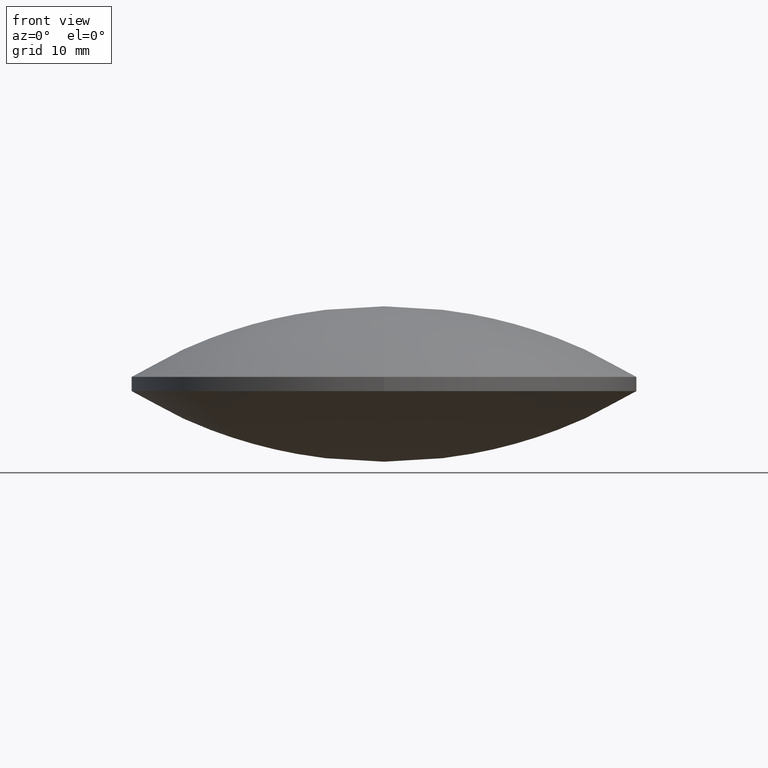
[diagram: clean part render]
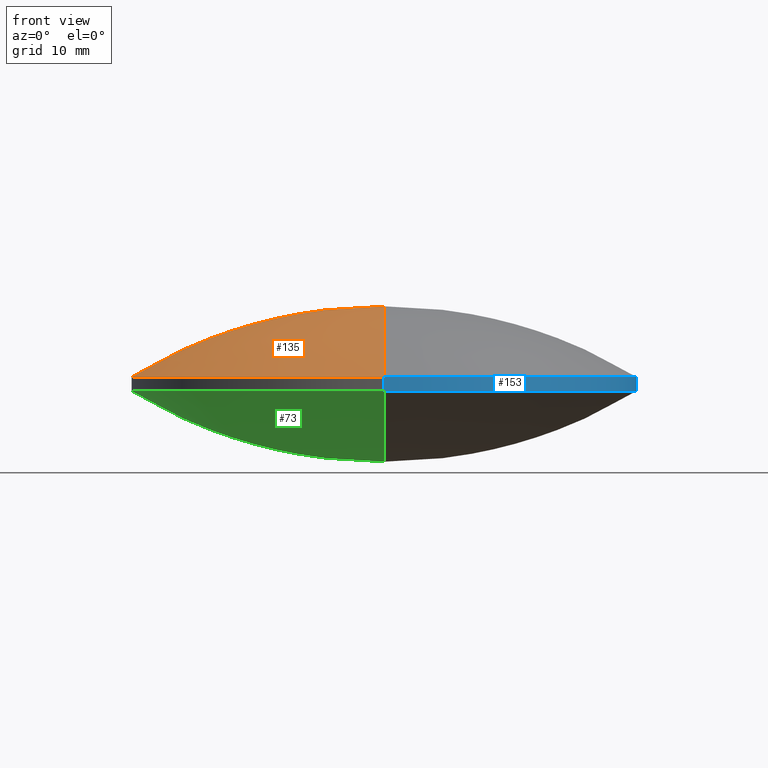
[diagram: same view with three faces highlighted in distinct colors, each labeled with its STEP entity id]
A machine part, front view with three faces highlighted in distinct colors.
Their STEP definitions:

[orange] entity #135 — the highlighted face is a freeform B-spline surface patch.
#4 = CARTESIAN_POINT ( 'NONE',  ( -21.81581761930886300, 25.67355596179357500, 2.202616643730818800 ) ) ;
#5 = CARTESIAN_POINT ( 'NONE',  ( -9.589711228101698700, -9.493655584627672900, 18.28236261593199400 ) ) ;
#16 =( BOUNDED_SURFACE ( )  B_SPLINE_SURFACE ( 3, 3, ( 
 ( #104, #144, #68, #36 ),
 ( #88, #5, #113, #53 ),
 ( #213, #111, #208, #148 ),
 ( #35, #85, #245, #4 ) ),
 .UNSPECIFIED., .F., .F., .T. ) 
 B_SPLINE_SURFACE_WITH_KNOTS ( ( 4, 4 ),
 ( 4, 4 ),
 ( 0.0000000000000000000, 1.000000000000000000 ),
 ( 0.0000000000000000000, 1.000000000000000000 ),
 .UNSPECIFIED. ) 
 GEOMETRIC_REPRESENTATION_ITEM ( )  RATIONAL_B_SPLINE_SURFACE ( (
 ( 1.000000000000000000, 0.9750407155908767900, 0.9750407155908767900, 1.000000000000000000),
 ( 0.9014285288715965200, 0.8789295178449928500, 0.8789295178449928500, 0.9014285288715965200),
 ( 0.9014285288715965200, 0.8789295178449928500, 0.8789295178449928500, 0.9014285288715965200),
 ( 1.000000000000000000, 0.9750407155908767900, 0.9750407155908767900, 1.000000000000000000) ) ) 
 REPRESENTATION_ITEM ( '' )  SURFACE ( )  );
#35 = CARTESIAN_POINT ( 'NONE',  ( 8.960409784571542900E-015, 25.67355596179357500, 8.346125439660790200 ) ) ;
#36 = CARTESIAN_POINT ( 'NONE',  ( -21.81581761930885600, -25.67355596179360000, 2.202616643730821400 ) ) ;
#38 = CARTESIAN_POINT ( 'NONE',  ( -3.552713678800500100E-015, -7.105427357601000300E-015, -33.46000000000000100 ) ) ;
#39 = ORIENTED_EDGE ( 'NONE', *, *, #49, .T. ) ;
#49 = EDGE_CURVE ( 'NONE', #107, #131, #146, .T. ) ;
#53 = CARTESIAN_POINT ( 'NONE',  ( -27.00087449267519400, -9.493655584627672900, 10.67870031740171100 ) ) ;
#68 = CARTESIAN_POINT ( 'NONE',  ( -15.20625868226547600, -25.67355596179360000, 6.245868258021976000 ) ) ;
#81 = ORIENTED_EDGE ( 'NONE', *, *, #172, .F. ) ;
#85 = CARTESIAN_POINT ( 'NONE',  ( -7.748170942791460900, 25.67355596179357100, 8.346125439660792000 ) ) ;
#87 = DIRECTION ( 'NONE',  ( 1.797079892071900000E-031, 9.344115438189380100E-016, -1.000000000000000000 ) ) ;
#88 = CARTESIAN_POINT ( 'NONE',  ( 1.193445632058646300E-014, -9.493655584627671100, 18.28236261593198400 ) ) ;
#95 = DIRECTION ( 'NONE',  ( 0.0000000000000000000, -1.000000000000000000, 2.828737832819905300E-016 ) ) ;
#97 = CARTESIAN_POINT ( 'NONE',  ( 9.992007221626410800E-016, -25.39999999999999500, 8.512891251377935100 ) ) ;
#104 = CARTESIAN_POINT ( 'NONE',  ( 8.960409784571536500E-015, -25.67355596179360000, 8.346125439660790200 ) ) ;
#107 = VERTEX_POINT ( 'NONE', #97 ) ;
#111 = CARTESIAN_POINT ( 'NONE',  ( -9.589711228101698700, 9.493655584627646200, 18.28236261593198700 ) ) ;
#113 = CARTESIAN_POINT ( 'NONE',  ( -18.82039396128808700, -9.493655584627672900, 15.68292850104567500 ) ) ;
#119 = AXIS2_PLACEMENT_3D ( 'NONE', #38, #173, #95 ) ;
#121 = FACE_OUTER_BOUND ( 'NONE', #176, .T. ) ;
#131 = VERTEX_POINT ( 'NONE', #255 ) ;
#135 = ADVANCED_FACE ( 'NONE', ( #121 ), #16, .T. ) ;
#144 = CARTESIAN_POINT ( 'NONE',  ( -7.748170942791459100, -25.67355596179360000, 8.346125439660792000 ) ) ;
#146 = CIRCLE ( 'NONE', #119, 49.06000000000000900 ) ;
#148 = CARTESIAN_POINT ( 'NONE',  ( -27.00087449267519400, 9.493655584627648000, 10.67870031740170600 ) ) ;
#172 = EDGE_CURVE ( 'NONE', #107, #131, #209, .T. ) ;
#173 = DIRECTION ( 'NONE',  ( -1.000000000000000000, 8.864262300989019900E-032, 2.993131588200479900E-016 ) ) ;
#176 = EDGE_LOOP ( 'NONE', ( #81, #39 ) ) ;
#208 = CARTESIAN_POINT ( 'NONE',  ( -18.82039396128808700, 9.493655584627646200, 15.68292850104566900 ) ) ;
#209 = CIRCLE ( 'NONE', #232, 25.39999999999999900 ) ;
#212 = CARTESIAN_POINT ( 'NONE',  ( 9.992007221626410800E-016, 3.552713678800502500E-015, 8.512891251377960000 ) ) ;
#213 = CARTESIAN_POINT ( 'NONE',  ( 1.193445632058646500E-014, 9.493655584627649800, 18.28236261593198400 ) ) ;
#228 = DIRECTION ( 'NONE',  ( 0.0000000000000000000, -1.000000000000000000, -9.561467977824922300E-016 ) ) ;
#232 = AXIS2_PLACEMENT_3D ( 'NONE', #212, #87, #228 ) ;
#245 = CARTESIAN_POINT ( 'NONE',  ( -15.20625868226548000, 25.67355596179357100, 6.245868258021974200 ) ) ;
#255 = CARTESIAN_POINT ( 'NONE',  ( 4.109803591996917800E-015, 25.40000000000000200, 8.512891251377984900 ) ) ;

[blue] entity #153 — the highlighted cylindrical surface (partial cylindrical patch) has radius 25.4 mm, axis along (-0, -0, 1).
#13 = DIRECTION ( 'NONE',  ( 1.797079892071900000E-031, 9.344115438189380100E-016, -1.000000000000000000 ) ) ;
#15 = DIRECTION ( 'NONE',  ( -1.797079892071900000E-031, -9.344115438189380100E-016, 1.000000000000000000 ) ) ;
#20 = VECTOR ( 'NONE', #15, 1000.000000000000000 ) ;
#28 = DIRECTION ( 'NONE',  ( 1.797079892071900000E-031, 9.344115438189380100E-016, -1.000000000000000000 ) ) ;
#31 = VERTEX_POINT ( 'NONE', #117 ) ;
#32 = CARTESIAN_POINT ( 'NONE',  ( 9.992007221626410800E-016, 3.552713678800502500E-015, 8.512891251377960000 ) ) ;
#37 = EDGE_CURVE ( 'NONE', #140, #131, #106, .T. ) ;
#40 = EDGE_CURVE ( 'NONE', #140, #31, #76, .T. ) ;
#45 = ORIENTED_EDGE ( 'NONE', *, *, #37, .T. ) ;
#48 = CARTESIAN_POINT ( 'NONE',  ( 9.992007221626412800E-016, -25.39999999999999500, 7.087108748622016600 ) ) ;
#72 = EDGE_LOOP ( 'NONE', ( #93, #45, #250, #230 ) ) ;
#74 = CARTESIAN_POINT ( 'NONE',  ( 9.992007221626412800E-016, 4.884981308350691100E-015, 7.087108748622040500 ) ) ;
#75 = EDGE_CURVE ( 'NONE', #131, #107, #101, .T. ) ;
#76 = CIRCLE ( 'NONE', #90, 25.39999999999999900 ) ;
#89 = LINE ( 'NONE', #48, #220 ) ;
#90 = AXIS2_PLACEMENT_3D ( 'NONE', #74, #13, #169 ) ;
#93 = ORIENTED_EDGE ( 'NONE', *, *, #40, .F. ) ;
#97 = CARTESIAN_POINT ( 'NONE',  ( 9.992007221626410800E-016, -25.39999999999999500, 8.512891251377935100 ) ) ;
#101 = CIRCLE ( 'NONE', #137, 25.39999999999999900 ) ;
#106 = LINE ( 'NONE', #151, #20 ) ;
#107 = VERTEX_POINT ( 'NONE', #97 ) ;
#117 = CARTESIAN_POINT ( 'NONE',  ( 9.992007221626412800E-016, -25.39999999999999500, 7.087108748622016600 ) ) ;
#124 = CARTESIAN_POINT ( 'NONE',  ( 4.109803591996917800E-015, 25.40000000000000200, 7.087108748622063600 ) ) ;
#131 = VERTEX_POINT ( 'NONE', #255 ) ;
#137 = AXIS2_PLACEMENT_3D ( 'NONE', #32, #28, #160 ) ;
#140 = VERTEX_POINT ( 'NONE', #124 ) ;
#151 = CARTESIAN_POINT ( 'NONE',  ( 4.109803591996917800E-015, 25.40000000000000200, 7.087108748622063600 ) ) ;
#153 = ADVANCED_FACE ( 'NONE', ( #200 ), #159, .T. ) ;
#159 = CYLINDRICAL_SURFACE ( 'NONE', #236, 25.39999999999999900 ) ;
#160 = DIRECTION ( 'NONE',  ( 0.0000000000000000000, -1.000000000000000000, -9.561467977824922300E-016 ) ) ;
#169 = DIRECTION ( 'NONE',  ( 0.0000000000000000000, -1.000000000000000000, -9.219986978616888100E-016 ) ) ;
#186 = CARTESIAN_POINT ( 'NONE',  ( 9.992007221626412800E-016, 4.884981308350691100E-015, 7.087108748622040500 ) ) ;
#188 = DIRECTION ( 'NONE',  ( 0.0000000000000000000, -1.000000000000000000, -9.219986978616888100E-016 ) ) ;
#200 = FACE_OUTER_BOUND ( 'NONE', #72, .T. ) ;
#211 = DIRECTION ( 'NONE',  ( -1.797079892071900000E-031, -9.344115438189380100E-016, 1.000000000000000000 ) ) ;
#220 = VECTOR ( 'NONE', #240, 1000.000000000000000 ) ;
#226 = EDGE_CURVE ( 'NONE', #31, #107, #89, .T. ) ;
#230 = ORIENTED_EDGE ( 'NONE', *, *, #226, .F. ) ;
#236 = AXIS2_PLACEMENT_3D ( 'NONE', #186, #211, #188 ) ;
#240 = DIRECTION ( 'NONE',  ( -1.797079892071900000E-031, -9.344115438189380100E-016, 1.000000000000000000 ) ) ;
#250 = ORIENTED_EDGE ( 'NONE', *, *, #75, .T. ) ;
#255 = CARTESIAN_POINT ( 'NONE',  ( 4.109803591996917800E-015, 25.40000000000000200, 8.512891251377984900 ) ) ;

[green] entity #73 — the highlighted face is a freeform B-spline surface patch.
#7 = DIRECTION ( 'NONE',  ( 0.0000000000000000000, -1.000000000000000000, -5.657475665639810500E-016 ) ) ;
#10 = AXIS2_PLACEMENT_3D ( 'NONE', #141, #162, #7 ) ;
#11 = CIRCLE ( 'NONE', #10, 49.06000000000000900 ) ;
#27 = DIRECTION ( 'NONE',  ( 1.797079892071900000E-031, 9.344115438189380100E-016, -1.000000000000000000 ) ) ;
#31 = VERTEX_POINT ( 'NONE', #117 ) ;
#43 = CARTESIAN_POINT ( 'NONE',  ( -2.428612866367529600E-014, 9.493655584627690700, -2.682362615931977300 ) ) ;
#62 = CARTESIAN_POINT ( 'NONE',  ( -18.82039396128811500, -9.493655584627637400, -0.08292850104565496800 ) ) ;
#63 = CARTESIAN_POINT ( 'NONE',  ( -7.748170942791488400, -25.67355596179356400, 7.253874560339210300 ) ) ;
#66 = FACE_OUTER_BOUND ( 'NONE', #196, .T. ) ;
#73 = ADVANCED_FACE ( 'NONE', ( #66 ), #170, .T. ) ;
#78 = DIRECTION ( 'NONE',  ( 0.0000000000000000000, -1.000000000000000000, -9.219986978616888100E-016 ) ) ;
#82 = EDGE_CURVE ( 'NONE', #31, #140, #11, .T. ) ;
#83 = CARTESIAN_POINT ( 'NONE',  ( -7.748170942791488400, 25.67355596179361000, 7.253874560339238700 ) ) ;
#99 = CARTESIAN_POINT ( 'NONE',  ( -2.775557561562891000E-014, -9.493655584627633800, -2.682362615931980900 ) ) ;
#102 = CARTESIAN_POINT ( 'NONE',  ( -18.82039396128811500, 9.493655584627690700, -0.08292850104564975000 ) ) ;
#117 = CARTESIAN_POINT ( 'NONE',  ( 9.992007221626412800E-016, -25.39999999999999500, 7.087108748622016600 ) ) ;
#120 = CARTESIAN_POINT ( 'NONE',  ( -27.00087449267522300, -9.493655584627639100, 4.921299682598308900 ) ) ;
#122 = CARTESIAN_POINT ( 'NONE',  ( -9.589711228101732500, 9.493655584627692400, -2.682362615931972900 ) ) ;
#124 = CARTESIAN_POINT ( 'NONE',  ( 4.109803591996917800E-015, 25.40000000000000200, 7.087108748622063600 ) ) ;
#126 = AXIS2_PLACEMENT_3D ( 'NONE', #179, #27, #78 ) ;
#127 = CARTESIAN_POINT ( 'NONE',  ( -2.428612866367529900E-014, 25.67355596179361000, 7.253874560339233400 ) ) ;
#140 = VERTEX_POINT ( 'NONE', #124 ) ;
#141 = CARTESIAN_POINT ( 'NONE',  ( 3.552713678800500100E-015, -7.105427357601000300E-015, 49.06000000000000900 ) ) ;
#152 = ORIENTED_EDGE ( 'NONE', *, *, #82, .F. ) ;
#155 = CARTESIAN_POINT ( 'NONE',  ( -21.81581761930887000, -25.67355596179357100, 13.39738335626918600 ) ) ;
#162 = DIRECTION ( 'NONE',  ( 1.000000000000000000, 1.772852460197800000E-031, -2.993131588200479900E-016 ) ) ;
#170 =( BOUNDED_SURFACE ( )  B_SPLINE_SURFACE ( 3, 3, ( 
 ( #155, #237, #63, #174 ),
 ( #120, #62, #199, #99 ),
 ( #252, #102, #122, #43 ),
 ( #224, #185, #83, #127 ) ),
 .UNSPECIFIED., .F., .F., .T. ) 
 B_SPLINE_SURFACE_WITH_KNOTS ( ( 4, 4 ),
 ( 4, 4 ),
 ( 0.0000000000000000000, 1.000000000000000000 ),
 ( 0.0000000000000000000, 1.000000000000000000 ),
 .UNSPECIFIED. ) 
 GEOMETRIC_REPRESENTATION_ITEM ( )  RATIONAL_B_SPLINE_SURFACE ( (
 ( 1.000000000000000000, 0.9750407155908767900, 0.9750407155908767900, 1.000000000000000000),
 ( 0.9014285288715965200, 0.8789295178449928500, 0.8789295178449928500, 0.9014285288715965200),
 ( 0.9014285288715965200, 0.8789295178449928500, 0.8789295178449928500, 0.9014285288715965200),
 ( 1.000000000000000000, 0.9750407155908767900, 0.9750407155908767900, 1.000000000000000000) ) ) 
 REPRESENTATION_ITEM ( '' )  SURFACE ( )  );
#174 = CARTESIAN_POINT ( 'NONE',  ( -2.428612866367529900E-014, -25.67355596179356800, 7.253874560339205900 ) ) ;
#175 = CIRCLE ( 'NONE', #126, 25.39999999999999900 ) ;
#179 = CARTESIAN_POINT ( 'NONE',  ( 9.992007221626412800E-016, 4.884981308350691100E-015, 7.087108748622040500 ) ) ;
#185 = CARTESIAN_POINT ( 'NONE',  ( -15.20625868226549600, 25.67355596179361000, 9.354131741978056500 ) ) ;
#196 = EDGE_LOOP ( 'NONE', ( #152, #246 ) ) ;
#198 = EDGE_CURVE ( 'NONE', #31, #140, #175, .T. ) ;
#199 = CARTESIAN_POINT ( 'NONE',  ( -9.589711228101732500, -9.493655584627633800, -2.682362615931975600 ) ) ;
#224 = CARTESIAN_POINT ( 'NONE',  ( -21.81581761930887000, 25.67355596179360700, 13.39738335626921500 ) ) ;
#237 = CARTESIAN_POINT ( 'NONE',  ( -15.20625868226549600, -25.67355596179356400, 9.354131741978029900 ) ) ;
#246 = ORIENTED_EDGE ( 'NONE', *, *, #198, .T. ) ;
#252 = CARTESIAN_POINT ( 'NONE',  ( -27.00087449267522300, 9.493655584627687100, 4.921299682598312400 ) ) ;